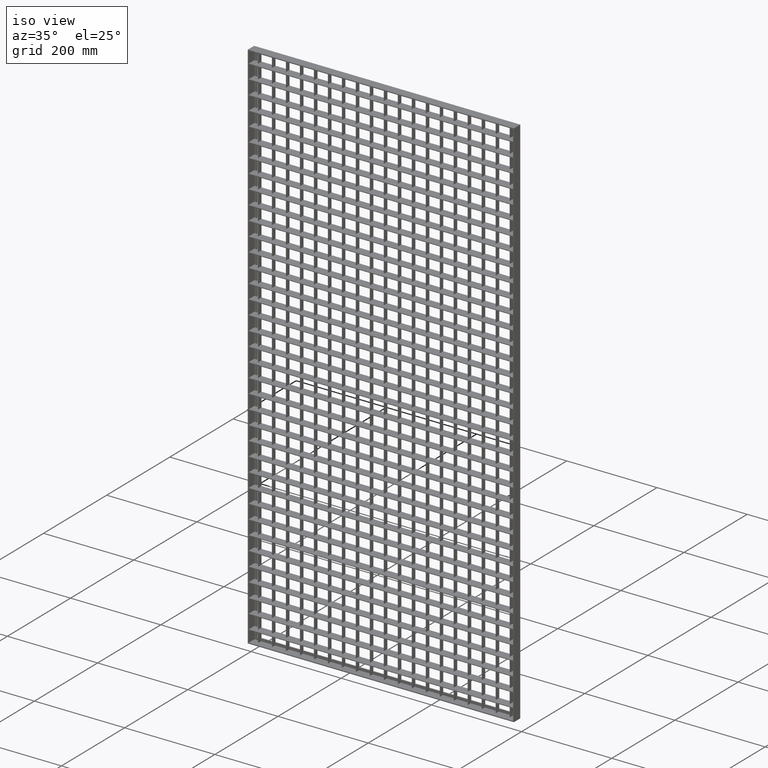
[diagram: clean part render]
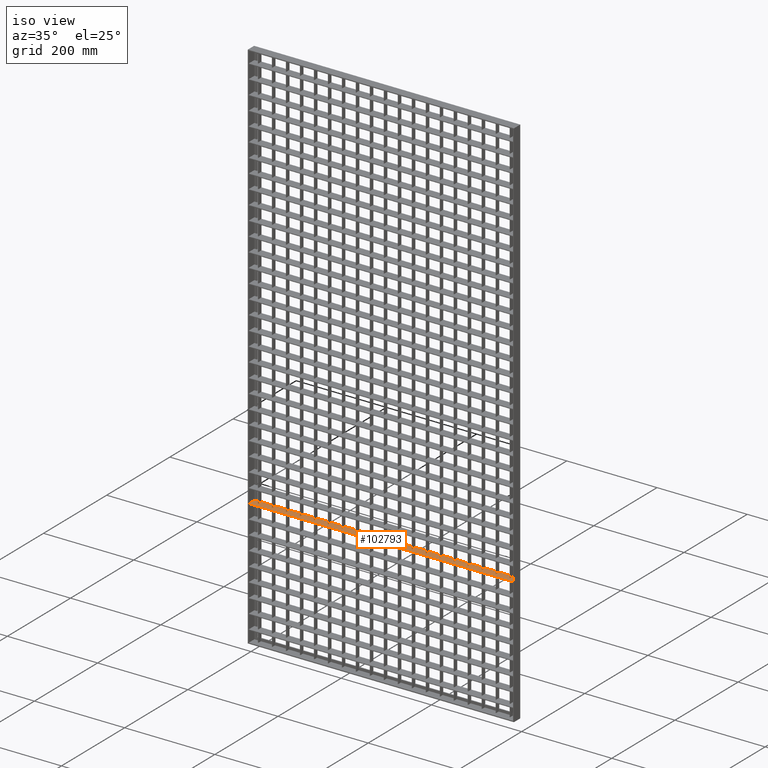
[diagram: same view with one face highlighted and labeled with its STEP entity id]
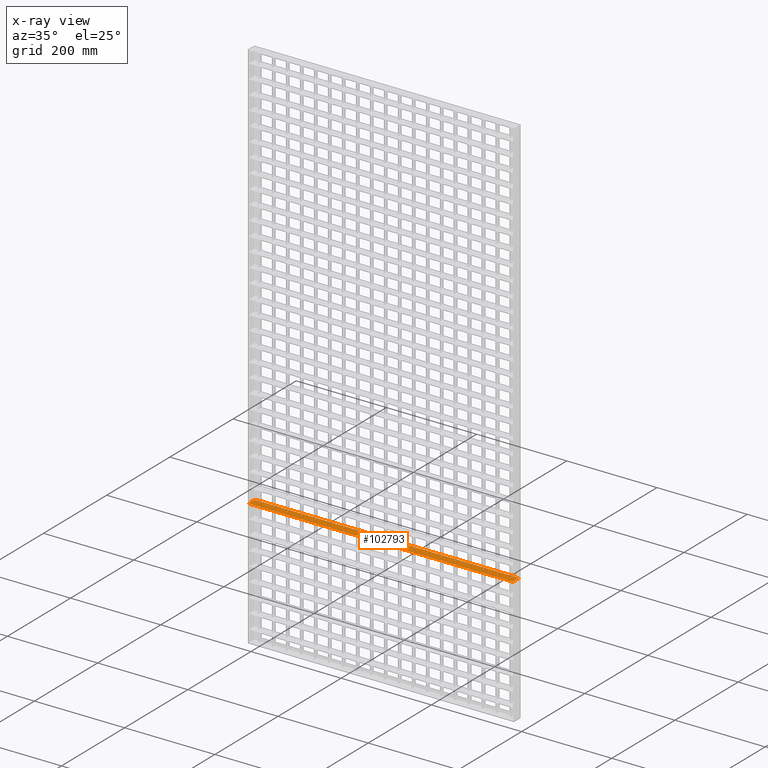
[diagram: x-ray of the same camera — body ghosted, the highlighted face saturated]
A machine part, iso view. The second image highlights one B-rep face of the part: STEP entity #102793.
The next image is the same camera in x-ray: the body ghosted, the highlighted face saturated — about 0% of this face is hidden behind the body in this view.
In plain terms, the highlighted planar face has unit normal (0, 0, -1).
Its self-contained STEP definition (entity closure, byte-faithful):
#78 = CARTESIAN_POINT ( 'NONE',  ( 170.4999999999999400, 1.345490023831153400E-015, -909.2499999999996600 ) ) ;
#370 = CARTESIAN_POINT ( 'NONE',  ( 78.50000000000001400, 1.734723475976807100E-015, -909.2499999999996600 ) ) ;
#568 = LINE ( 'NONE', #62089, #49426 ) ;
#1215 = DIRECTION ( 'NONE',  ( 0.0000000000000000000, 1.000000000000000000, 0.0000000000000000000 ) ) ;
#1336 = VECTOR ( 'NONE', #60991, 1000.000000000000000 ) ;
#1438 = VERTEX_POINT ( 'NONE', #71769 ) ;
#1625 = VECTOR ( 'NONE', #14140, 1000.000000000000000 ) ;
#1772 = LINE ( 'NONE', #8859, #18064 ) ;
#1851 = DIRECTION ( 'NONE',  ( 0.0000000000000000000, 1.000000000000000000, 0.0000000000000000000 ) ) ;
#1933 = LINE ( 'NONE', #41455, #72022 ) ;
#2277 = CARTESIAN_POINT ( 'NONE',  ( 295.5000000000000000, 10.00000000000008700, -909.2499999999996600 ) ) ;
#2366 = LINE ( 'NONE', #75761, #37498 ) ;
#2458 = DIRECTION ( 'NONE',  ( 0.0000000000000000000, -1.000000000000000000, 0.0000000000000000000 ) ) ;
#2610 = DIRECTION ( 'NONE',  ( -1.000000000000000000, -3.061616997868382600E-016, 0.0000000000000000000 ) ) ;
#2643 = EDGE_CURVE ( 'NONE', #42727, #15884, #7554, .T. ) ;
#2655 = ORIENTED_EDGE ( 'NONE', *, *, #2643, .T. ) ;
#2657 = LINE ( 'NONE', #76883, #100457 ) ;
#2884 = ORIENTED_EDGE ( 'NONE', *, *, #66905, .T. ) ;
#2938 = LINE ( 'NONE', #61050, #1625 ) ;
#3167 = EDGE_CURVE ( 'NONE', #20402, #7602, #48887, .T. ) ;
#3427 = EDGE_CURVE ( 'NONE', #86903, #40808, #18760, .T. ) ;
#3439 = VECTOR ( 'NONE', #88940, 1000.000000000000000 ) ;
#3487 = LINE ( 'NONE', #13664, #46133 ) ;
#4310 = CARTESIAN_POINT ( 'NONE',  ( 295.5000000000000000, 1.734723475976807100E-015, -909.2499999999996600 ) ) ;
#4484 = CARTESIAN_POINT ( 'NONE',  ( 7.999999999999996400, 8.000000000000001800, -909.2499999999996600 ) ) ;
#5351 = EDGE_CURVE ( 'NONE', #18901, #21180, #16200, .T. ) ;
#5453 = EDGE_CURVE ( 'NONE', #32076, #76232, #53677, .T. ) ;
#5468 = VERTEX_POINT ( 'NONE', #11024 ) ;
#5621 = ORIENTED_EDGE ( 'NONE', *, *, #15401, .F. ) ;
#5641 = CARTESIAN_POINT ( 'NONE',  ( 8.000000000000007100, 9.999999999999998200, -909.2499999999996600 ) ) ;
#5645 = EDGE_CURVE ( 'NONE', #101463, #81295, #2366, .T. ) ;
#5888 = CARTESIAN_POINT ( 'NONE',  ( 608.0561711201316900, 9.714451465470119700E-014, -909.2499999999996600 ) ) ;
#5923 = CARTESIAN_POINT ( 'NONE',  ( 202.5000000000000000, 1.734723475976807100E-015, -909.2499999999996600 ) ) ;
#6201 = DIRECTION ( 'NONE',  ( 1.000000000000000000, 0.0000000000000000000, 0.0000000000000000000 ) ) ;
#6344 = EDGE_CURVE ( 'NONE', #81295, #49797, #91287, .T. ) ;
#6555 = EDGE_CURVE ( 'NONE', #102864, #52254, #76183, .T. ) ;
#6805 = DIRECTION ( 'NONE',  ( 0.0000000000000000000, -1.000000000000000000, 0.0000000000000000000 ) ) ;
#6844 = ORIENTED_EDGE ( 'NONE', *, *, #100784, .T. ) ;
#7112 = EDGE_CURVE ( 'NONE', #91309, #96968, #51003, .T. ) ;
#7199 = CARTESIAN_POINT ( 'NONE',  ( 608.0561711201316900, -2.775557561562891400E-014, -909.2499999999996600 ) ) ;
#7554 = LINE ( 'NONE', #46752, #37796 ) ;
#7592 = VERTEX_POINT ( 'NONE', #62541 ) ;
#7602 = VERTEX_POINT ( 'NONE', #69889 ) ;
#7664 = CARTESIAN_POINT ( 'NONE',  ( 295.5000000000000000, -9.999999999999818800, -909.2499999999996600 ) ) ;
#7706 = EDGE_CURVE ( 'NONE', #82627, #26991, #73302, .T. ) ;
#8111 = DIRECTION ( 'NONE',  ( -1.000000000000000000, -3.061616997868373300E-016, 0.0000000000000000000 ) ) ;
#8253 = DIRECTION ( 'NONE',  ( 0.0000000000000000000, -1.000000000000000000, 0.0000000000000000000 ) ) ;
#8366 = ORIENTED_EDGE ( 'NONE', *, *, #3427, .F. ) ;
#8679 = CARTESIAN_POINT ( 'NONE',  ( 450.5000000000001100, 10.00000000000013300, -909.2499999999996600 ) ) ;
#8697 = ORIENTED_EDGE ( 'NONE', *, *, #39094, .T. ) ;
#8776 = CARTESIAN_POINT ( 'NONE',  ( 608.0561711201316900, 10.00000000000018300, -909.2499999999996600 ) ) ;
#8859 = CARTESIAN_POINT ( 'NONE',  ( 608.0561711201316900, 10.00000000000018300, -909.2499999999996600 ) ) ;
#9248 = ORIENTED_EDGE ( 'NONE', *, *, #70569, .T. ) ;
#9388 = ORIENTED_EDGE ( 'NONE', *, *, #56530, .F. ) ;
#9433 = DIRECTION ( 'NONE',  ( 0.0000000000000000000, -1.000000000000000000, 0.0000000000000000000 ) ) ;
#9509 = ORIENTED_EDGE ( 'NONE', *, *, #26247, .F. ) ;
#9542 = VERTEX_POINT ( 'NONE', #21664 ) ;
#9615 = VERTEX_POINT ( 'NONE', #39545 ) ;
#9704 = LINE ( 'NONE', #46337, #62217 ) ;
#9806 = VECTOR ( 'NONE', #8253, 1000.000000000000000 ) ;
#9964 = CARTESIAN_POINT ( 'NONE',  ( 108.4999999999999900, -9.999999999999818800, -909.2499999999996600 ) ) ;
#10398 = ORIENTED_EDGE ( 'NONE', *, *, #84453, .T. ) ;
#10436 = CARTESIAN_POINT ( 'NONE',  ( 171.5000000000000300, 10.00000000000004800, -909.2499999999996600 ) ) ;
#10454 = ORIENTED_EDGE ( 'NONE', *, *, #32144, .T. ) ;
#10692 = CARTESIAN_POINT ( 'NONE',  ( 608.0561711201316900, 10.00000000000018300, -909.2499999999996600 ) ) ;
#10978 = EDGE_CURVE ( 'NONE', #66422, #102581, #84723, .T. ) ;
#11024 = CARTESIAN_POINT ( 'NONE',  ( 171.5000000000000000, 1.734723475976807100E-015, -909.2499999999996600 ) ) ;
#11152 = CARTESIAN_POINT ( 'NONE',  ( 608.0561711201316900, 10.00000000000018300, -909.2499999999996600 ) ) ;
#11207 = CARTESIAN_POINT ( 'NONE',  ( 388.5000000000000600, 10.00000000000011500, -909.2499999999996600 ) ) ;
#11286 = VECTOR ( 'NONE', #82263, 1000.000000000000000 ) ;
#11447 = VECTOR ( 'NONE', #95395, 1000.000000000000000 ) ;
#11859 = EDGE_CURVE ( 'NONE', #66422, #53728, #47039, .T. ) ;
#12289 = LINE ( 'NONE', #11152, #93790 ) ;
#12938 = ORIENTED_EDGE ( 'NONE', *, *, #77620, .T. ) ;
#13148 = VERTEX_POINT ( 'NONE', #10436 ) ;
#13159 = VECTOR ( 'NONE', #38694, 1000.000000000000000 ) ;
#13304 = EDGE_CURVE ( 'NONE', #57075, #93430, #2657, .T. ) ;
#13560 = ORIENTED_EDGE ( 'NONE', *, *, #83754, .F. ) ;
#13664 = CARTESIAN_POINT ( 'NONE',  ( 608.0561711201316900, 10.00000000000018300, -909.2499999999996600 ) ) ;
#13735 = CARTESIAN_POINT ( 'NONE',  ( 108.4999999999999900, 10.00000000000000200, -909.2499999999996600 ) ) ;
#13865 = VECTOR ( 'NONE', #25073, 1000.000000000000000 ) ;
#13880 = CARTESIAN_POINT ( 'NONE',  ( 387.5000000000000000, 1.718540578710342600E-015, -909.2499999999996600 ) ) ;
#13884 = VERTEX_POINT ( 'NONE', #53355 ) ;
#13956 = VECTOR ( 'NONE', #67084, 1000.000000000000000 ) ;
#14019 = DIRECTION ( 'NONE',  ( 1.000000000000000000, 0.0000000000000000000, 0.0000000000000000000 ) ) ;
#14140 = DIRECTION ( 'NONE',  ( 1.000000000000000000, -3.061616997868373300E-016, 0.0000000000000000000 ) ) ;
#14207 = ORIENTED_EDGE ( 'NONE', *, *, #95027, .T. ) ;
#14262 = VECTOR ( 'NONE', #6201, 1000.000000000000000 ) ;
#14368 = CARTESIAN_POINT ( 'NONE',  ( 511.5000000000000600, -9.999999999999818800, -909.2499999999996600 ) ) ;
#14772 = ORIENTED_EDGE ( 'NONE', *, *, #96284, .T. ) ;
#14792 = LINE ( 'NONE', #88891, #38705 ) ;
#15186 = CARTESIAN_POINT ( 'NONE',  ( 232.4999999999999700, -9.999999999999818800, -909.2499999999996600 ) ) ;
#15219 = CARTESIAN_POINT ( 'NONE',  ( 264.4999999999999400, 10.00000000000007600, -909.2499999999996600 ) ) ;
#15255 = VECTOR ( 'NONE', #87243, 1000.000000000000000 ) ;
#15350 = VERTEX_POINT ( 'NONE', #88763 ) ;
#15401 = EDGE_CURVE ( 'NONE', #9542, #18901, #100084, .T. ) ;
#15416 = ORIENTED_EDGE ( 'NONE', *, *, #52097, .T. ) ;
#15467 = EDGE_CURVE ( 'NONE', #56647, #73288, #87455, .T. ) ;
#15729 = VECTOR ( 'NONE', #31173, 1000.000000000000000 ) ;
#15865 = VERTEX_POINT ( 'NONE', #98022 ) ;
#15884 = VERTEX_POINT ( 'NONE', #8679 ) ;
#15939 = CARTESIAN_POINT ( 'NONE',  ( 356.5000000000001700, 10.00000000000010700, -909.2499999999996600 ) ) ;
#16144 = EDGE_CURVE ( 'NONE', #22134, #82326, #9704, .T. ) ;
#16200 = LINE ( 'NONE', #80372, #82592 ) ;
#16316 = LINE ( 'NONE', #91999, #53879 ) ;
#16484 = ORIENTED_EDGE ( 'NONE', *, *, #42547, .T. ) ;
#16559 = CARTESIAN_POINT ( 'NONE',  ( 264.4999999999999400, -9.999999999999818800, -909.2499999999996600 ) ) ;
#16635 = EDGE_CURVE ( 'NONE', #102505, #93416, #95890, .T. ) ;
#16653 = VECTOR ( 'NONE', #39118, 1000.000000000000000 ) ;
#16824 = CARTESIAN_POINT ( 'NONE',  ( 574.5000000000001100, 10.00000000000017200, -909.2499999999996600 ) ) ;
#17376 = EDGE_CURVE ( 'NONE', #66761, #17636, #95675, .T. ) ;
#17466 = LINE ( 'NONE', #98584, #100208 ) ;
#17592 = VECTOR ( 'NONE', #75339, 1000.000000000000000 ) ;
#17636 = VERTEX_POINT ( 'NONE', #47863 ) ;
#17676 = EDGE_CURVE ( 'NONE', #96968, #91911, #71696, .T. ) ;
#18064 = VECTOR ( 'NONE', #96448, 1000.000000000000000 ) ;
#18068 = VERTEX_POINT ( 'NONE', #71823 ) ;
#18076 = EDGE_CURVE ( 'NONE', #9542, #102864, #31660, .T. ) ;
#18182 = LINE ( 'NONE', #22176, #93339 ) ;
#18328 = EDGE_CURVE ( 'NONE', #13884, #52605, #64070, .T. ) ;
#18370 = CARTESIAN_POINT ( 'NONE',  ( 574.5000000000001100, -9.999999999999818800, -909.2499999999996600 ) ) ;
#18398 = ORIENTED_EDGE ( 'NONE', *, *, #24230, .T. ) ;
#18568 = EDGE_CURVE ( 'NONE', #66128, #22930, #27742, .T. ) ;
#18697 = VECTOR ( 'NONE', #62219, 1000.000000000000000 ) ;
#18760 = LINE ( 'NONE', #14368, #37594 ) ;
#18901 = VERTEX_POINT ( 'NONE', #56642 ) ;
#19048 = EDGE_CURVE ( 'NONE', #95691, #64684, #31573, .T. ) ;
#19248 = ORIENTED_EDGE ( 'NONE', *, *, #10978, .F. ) ;
#19317 = LINE ( 'NONE', #24418, #34438 ) ;
#19402 = DIRECTION ( 'NONE',  ( -1.000000000000000000, -3.061616997868373300E-016, 0.0000000000000000000 ) ) ;
#19624 = CARTESIAN_POINT ( 'NONE',  ( 232.4999999999999700, 10.00000000000000200, -909.2499999999996600 ) ) ;
#19668 = CARTESIAN_POINT ( 'NONE',  ( 543.5000000000001100, -9.999999999999818800, -909.2499999999996600 ) ) ;
#19739 = VECTOR ( 'NONE', #74885, 1000.000000000000000 ) ;
#20206 = ORIENTED_EDGE ( 'NONE', *, *, #46260, .F. ) ;
#20232 = CARTESIAN_POINT ( 'NONE',  ( 170.4999999999999700, 10.00000000000000200, -909.2499999999996600 ) ) ;
#20394 = DIRECTION ( 'NONE',  ( 0.0000000000000000000, 1.000000000000000000, 0.0000000000000000000 ) ) ;
#20402 = VERTEX_POINT ( 'NONE', #83369 ) ;
#20476 = DIRECTION ( 'NONE',  ( 0.0000000000000000000, -1.000000000000000000, 0.0000000000000000000 ) ) ;
#20480 = CARTESIAN_POINT ( 'NONE',  ( 449.5000000000000600, -9.999999999999818800, -909.2499999999996600 ) ) ;
#20490 = EDGE_CURVE ( 'NONE', #52605, #13148, #3487, .T. ) ;
#20755 = ORIENTED_EDGE ( 'NONE', *, *, #3167, .F. ) ;
#20804 = EDGE_CURVE ( 'NONE', #18068, #9615, #27316, .T. ) ;
#20813 = LINE ( 'NONE', #65398, #72085 ) ;
#20881 = ORIENTED_EDGE ( 'NONE', *, *, #38727, .F. ) ;
#20886 = ORIENTED_EDGE ( 'NONE', *, *, #101408, .T. ) ;
#20919 = VECTOR ( 'NONE', #27188, 1000.000000000000000 ) ;
#21180 = VERTEX_POINT ( 'NONE', #87432 ) ;
#21664 = CARTESIAN_POINT ( 'NONE',  ( 325.5000000000000600, 10.00000000000009600, -909.2499999999996600 ) ) ;
#22134 = VERTEX_POINT ( 'NONE', #54232 ) ;
#22176 = CARTESIAN_POINT ( 'NONE',  ( 170.4999999999999700, -9.999999999999818800, -909.2499999999996600 ) ) ;
#22335 = CARTESIAN_POINT ( 'NONE',  ( 542.5000000000001100, 1.718540578710342600E-015, -909.2499999999996600 ) ) ;
#22501 = LINE ( 'NONE', #41233, #36295 ) ;
#22595 = CARTESIAN_POINT ( 'NONE',  ( 608.0561711201316900, -6.591949208711867000E-014, -909.2499999999996600 ) ) ;
#22603 = DIRECTION ( 'NONE',  ( 0.0000000000000000000, 1.000000000000000000, 0.0000000000000000000 ) ) ;
#22659 = LINE ( 'NONE', #22595, #46457 ) ;
#22918 = CARTESIAN_POINT ( 'NONE',  ( 608.0561711201316900, 10.00000000000018300, -909.2499999999996600 ) ) ;
#22930 = VERTEX_POINT ( 'NONE', #41800 ) ;
#23277 = LINE ( 'NONE', #38010, #13159 ) ;
#23529 = DIRECTION ( 'NONE',  ( 1.000000000000000000, -3.061616997868373300E-016, 0.0000000000000000000 ) ) ;
#23619 = VERTEX_POINT ( 'NONE', #91268 ) ;
#23630 = VECTOR ( 'NONE', #24899, 1000.000000000000000 ) ;
#23717 = LINE ( 'NONE', #4484, #44996 ) ;
#24183 = VECTOR ( 'NONE', #42612, 1000.000000000000000 ) ;
#24212 = CARTESIAN_POINT ( 'NONE',  ( 233.4999999999999700, 10.00000000000006800, -909.2499999999996600 ) ) ;
#24230 = EDGE_CURVE ( 'NONE', #103788, #13884, #90890, .T. ) ;
#24368 = CARTESIAN_POINT ( 'NONE',  ( 608.0561711201316900, 10.00000000000018300, -909.2499999999996600 ) ) ;
#24393 = EDGE_CURVE ( 'NONE', #71296, #53728, #23277, .T. ) ;
#24418 = CARTESIAN_POINT ( 'NONE',  ( 608.0561711201316900, 10.00000000000018300, -909.2499999999996600 ) ) ;
#24470 = VECTOR ( 'NONE', #42818, 1000.000000000000000 ) ;
#24515 = VERTEX_POINT ( 'NONE', #40443 ) ;
#24666 = EDGE_CURVE ( 'NONE', #48563, #95691, #1933, .T. ) ;
#24676 = VERTEX_POINT ( 'NONE', #57095 ) ;
#24899 = DIRECTION ( 'NONE',  ( 0.0000000000000000000, -1.000000000000000000, 0.0000000000000000000 ) ) ;
#24976 = CARTESIAN_POINT ( 'NONE',  ( 201.4999999999999700, 10.00000000000000200, -909.2499999999996600 ) ) ;
#25073 = DIRECTION ( 'NONE',  ( -1.000000000000000000, -3.061616997868382600E-016, 0.0000000000000000000 ) ) ;
#25173 = ORIENTED_EDGE ( 'NONE', *, *, #35881, .T. ) ;
#25205 = CARTESIAN_POINT ( 'NONE',  ( 480.5000000000000000, -9.999999999999818800, -909.2499999999996600 ) ) ;
#25214 = ORIENTED_EDGE ( 'NONE', *, *, #36207, .T. ) ;
#25222 = VECTOR ( 'NONE', #83190, 1000.000000000000000 ) ;
#25417 = DIRECTION ( 'NONE',  ( -1.000000000000000000, -3.061616997868382600E-016, 0.0000000000000000000 ) ) ;
#25592 = VECTOR ( 'NONE', #83769, 1000.000000000000000 ) ;
#25692 = CARTESIAN_POINT ( 'NONE',  ( 512.5000000000001100, 1.500064159632462200E-015, -909.2499999999996600 ) ) ;
#25722 = ORIENTED_EDGE ( 'NONE', *, *, #17676, .T. ) ;
#25809 = CARTESIAN_POINT ( 'NONE',  ( 449.5000000000000600, 1.718540578710342600E-015, -909.2499999999996600 ) ) ;
#25833 = VERTEX_POINT ( 'NONE', #79046 ) ;
#26067 = CARTESIAN_POINT ( 'NONE',  ( 140.4999999999999700, 1.734723475976807100E-015, -909.2499999999996600 ) ) ;
#26247 = EDGE_CURVE ( 'NONE', #102877, #63757, #50280, .T. ) ;
#26666 = VECTOR ( 'NONE', #36737, 1000.000000000000000 ) ;
#26779 = EDGE_CURVE ( 'NONE', #17636, #57075, #36473, .T. ) ;
#26863 = CARTESIAN_POINT ( 'NONE',  ( 608.0561711201316900, 1.734723475976807100E-013, -909.2499999999996600 ) ) ;
#26991 = VERTEX_POINT ( 'NONE', #37958 ) ;
#27091 = VECTOR ( 'NONE', #19402, 1000.000000000000000 ) ;
#27158 = CARTESIAN_POINT ( 'NONE',  ( 608.0561711201316900, -7.459310946700270500E-014, -909.2499999999996600 ) ) ;
#27188 = DIRECTION ( 'NONE',  ( 0.0000000000000000000, -1.000000000000000000, 0.0000000000000000000 ) ) ;
#27316 = LINE ( 'NONE', #41781, #98723 ) ;
#27500 = VECTOR ( 'NONE', #28919, 1000.000000000000000 ) ;
#27742 = LINE ( 'NONE', #19668, #85269 ) ;
#27979 = CARTESIAN_POINT ( 'NONE',  ( 511.5000000000000600, 10.00000000000015300, -909.2499999999996600 ) ) ;
#28204 = LINE ( 'NONE', #70481, #33202 ) ;
#28238 = VERTEX_POINT ( 'NONE', #40098 ) ;
#28503 = VECTOR ( 'NONE', #57540, 1000.000000000000000 ) ;
#28916 = VECTOR ( 'NONE', #25417, 1000.000000000000000 ) ;
#28919 = DIRECTION ( 'NONE',  ( 0.0000000000000000000, -1.000000000000000000, 0.0000000000000000000 ) ) ;
#29119 = VERTEX_POINT ( 'NONE', #30811 ) ;
#29638 = DIRECTION ( 'NONE',  ( 0.0000000000000000000, 1.000000000000000000, 0.0000000000000000000 ) ) ;
#29795 = VECTOR ( 'NONE', #59974, 1000.000000000000000 ) ;
#30258 = CARTESIAN_POINT ( 'NONE',  ( 263.4999999999999400, -9.999999999999818800, -909.2499999999996600 ) ) ;
#30259 = VERTEX_POINT ( 'NONE', #13880 ) ;
#30639 = LINE ( 'NONE', #50586, #31848 ) ;
#30762 = CARTESIAN_POINT ( 'NONE',  ( 357.5000000000001700, 10.00000000000010700, -909.2499999999996600 ) ) ;
#30811 = CARTESIAN_POINT ( 'NONE',  ( 419.5000000000001100, 2.217526624179423100E-015, -909.2499999999996600 ) ) ;
#31142 = ORIENTED_EDGE ( 'NONE', *, *, #92760, .T. ) ;
#31173 = DIRECTION ( 'NONE',  ( 0.0000000000000000000, -1.000000000000000000, 0.0000000000000000000 ) ) ;
#31301 = VECTOR ( 'NONE', #29638, 1000.000000000000000 ) ;
#31406 = ORIENTED_EDGE ( 'NONE', *, *, #16144, .F. ) ;
#31573 = LINE ( 'NONE', #24368, #13865 ) ;
#31650 = VECTOR ( 'NONE', #76021, 1000.000000000000000 ) ;
#31660 = LINE ( 'NONE', #22918, #15255 ) ;
#31848 = VECTOR ( 'NONE', #51603, 1000.000000000000000 ) ;
#32051 = ORIENTED_EDGE ( 'NONE', *, *, #54333, .T. ) ;
#32075 = EDGE_CURVE ( 'NONE', #67802, #76657, #63473, .T. ) ;
#32076 = VERTEX_POINT ( 'NONE', #19624 ) ;
#32144 = EDGE_CURVE ( 'NONE', #57867, #28238, #103623, .T. ) ;
#32355 = VERTEX_POINT ( 'NONE', #79427 ) ;
#32626 = CARTESIAN_POINT ( 'NONE',  ( 511.5000000000000600, 1.718540578710342600E-015, -909.2499999999996600 ) ) ;
#32712 = ORIENTED_EDGE ( 'NONE', *, *, #18568, .F. ) ;
#33162 = LINE ( 'NONE', #69534, #14262 ) ;
#33202 = VECTOR ( 'NONE', #79255, 1000.000000000000000 ) ;
#33864 = ORIENTED_EDGE ( 'NONE', *, *, #51060, .T. ) ;
#34009 = ORIENTED_EDGE ( 'NONE', *, *, #62255, .T. ) ;
#34172 = ORIENTED_EDGE ( 'NONE', *, *, #70854, .T. ) ;
#34438 = VECTOR ( 'NONE', #49216, 1000.000000000000000 ) ;
#34497 = EDGE_CURVE ( 'NONE', #61123, #24515, #63847, .T. ) ;
#34499 = CARTESIAN_POINT ( 'NONE',  ( 543.5000000000001100, 6.826688461245314000E-016, -909.2499999999996600 ) ) ;
#34617 = VERTEX_POINT ( 'NONE', #50876 ) ;
#34765 = DIRECTION ( 'NONE',  ( -1.000000000000000000, -3.061616997868382600E-016, 0.0000000000000000000 ) ) ;
#35102 = CARTESIAN_POINT ( 'NONE',  ( 608.0561711201316900, 10.00000000000018300, -909.2499999999996600 ) ) ;
#35215 = AXIS2_PLACEMENT_3D ( 'NONE', #63893, #55144, #47174 ) ;
#35373 = ORIENTED_EDGE ( 'NONE', *, *, #76314, .T. ) ;
#35881 = EDGE_CURVE ( 'NONE', #64684, #88403, #92312, .T. ) ;
#35943 = DIRECTION ( 'NONE',  ( -1.000000000000000000, -3.061616997868382600E-016, 0.0000000000000000000 ) ) ;
#36020 = LINE ( 'NONE', #18370, #28503 ) ;
#36027 = ORIENTED_EDGE ( 'NONE', *, *, #13304, .F. ) ;
#36161 = VERTEX_POINT ( 'NONE', #47828 ) ;
#36207 = EDGE_CURVE ( 'NONE', #23619, #102505, #43456, .T. ) ;
#36295 = VECTOR ( 'NONE', #2610, 1000.000000000000000 ) ;
#36410 = CARTESIAN_POINT ( 'NONE',  ( 294.5000000000000000, 10.00000000000000200, -909.2499999999996600 ) ) ;
#36473 = LINE ( 'NONE', #27158, #17592 ) ;
#36579 = LINE ( 'NONE', #25205, #79071 ) ;
#36737 = DIRECTION ( 'NONE',  ( -1.000000000000000000, -3.061616997868382600E-016, 0.0000000000000000000 ) ) ;
#37315 = ORIENTED_EDGE ( 'NONE', *, *, #53798, .T. ) ;
#37498 = VECTOR ( 'NONE', #35943, 1000.000000000000000 ) ;
#37594 = VECTOR ( 'NONE', #70350, 1000.000000000000000 ) ;
#37796 = VECTOR ( 'NONE', #93665, 1000.000000000000000 ) ;
#37903 = LINE ( 'NONE', #43405, #26666 ) ;
#37958 = CARTESIAN_POINT ( 'NONE',  ( 233.4999999999999700, 1.734723475976807100E-015, -909.2499999999996600 ) ) ;
#38003 = CARTESIAN_POINT ( 'NONE',  ( 109.4999999999999900, -9.999999999999818800, -909.2499999999996600 ) ) ;
#38010 = CARTESIAN_POINT ( 'NONE',  ( 512.5000000000001100, -9.999999999999818800, -909.2499999999996600 ) ) ;
#38046 = LINE ( 'NONE', #15186, #16653 ) ;
#38599 = ORIENTED_EDGE ( 'NONE', *, *, #42115, .T. ) ;
#38687 = VERTEX_POINT ( 'NONE', #82458 ) ;
#38694 = DIRECTION ( 'NONE',  ( 0.0000000000000000000, 1.000000000000000000, 0.0000000000000000000 ) ) ;
#38705 = VECTOR ( 'NONE', #41052, 1000.000000000000000 ) ;
#38727 = EDGE_CURVE ( 'NONE', #84169, #30259, #67953, .T. ) ;
#38799 = ORIENTED_EDGE ( 'NONE', *, *, #49201, .F. ) ;
#38930 = CARTESIAN_POINT ( 'NONE',  ( 608.0561711201316900, 1.630640067418198700E-013, -909.2499999999996600 ) ) ;
#39094 = EDGE_CURVE ( 'NONE', #88403, #1438, #28204, .T. ) ;
#39100 = EDGE_CURVE ( 'NONE', #28238, #90589, #568, .T. ) ;
#39118 = DIRECTION ( 'NONE',  ( 0.0000000000000000000, 1.000000000000000000, 0.0000000000000000000 ) ) ;
#39169 = EDGE_CURVE ( 'NONE', #20402, #44233, #1772, .T. ) ;
#39342 = EDGE_CURVE ( 'NONE', #52011, #95044, #74393, .T. ) ;
#39545 = CARTESIAN_POINT ( 'NONE',  ( 418.5000000000000600, 1.718540578710342600E-015, -909.2499999999996600 ) ) ;
#40098 = CARTESIAN_POINT ( 'NONE',  ( 77.50000000000001400, 6.280275592842356500E-016, -909.2499999999996600 ) ) ;
#40247 = CARTESIAN_POINT ( 'NONE',  ( 47.49999999999998600, 10.00000000000001100, -909.2499999999996600 ) ) ;
#40415 = ORIENTED_EDGE ( 'NONE', *, *, #7706, .T. ) ;
#40443 = CARTESIAN_POINT ( 'NONE',  ( 78.50000000000001400, 10.00000000000002100, -909.2499999999996600 ) ) ;
#40519 = LINE ( 'NONE', #88903, #60447 ) ;
#40637 = VECTOR ( 'NONE', #84459, 1000.000000000000000 ) ;
#40712 = CARTESIAN_POINT ( 'NONE',  ( 608.0561711201316900, -5.551115123125782700E-014, -909.2499999999996600 ) ) ;
#40808 = VERTEX_POINT ( 'NONE', #32626 ) ;
#40924 = DIRECTION ( 'NONE',  ( -1.000000000000000000, -3.061616997868382600E-016, 0.0000000000000000000 ) ) ;
#41052 = DIRECTION ( 'NONE',  ( 0.0000000000000000000, -1.000000000000000000, 0.0000000000000000000 ) ) ;
#41233 = CARTESIAN_POINT ( 'NONE',  ( 608.0561711201316900, 10.00000000000018300, -909.2499999999996600 ) ) ;
#41338 = FACE_OUTER_BOUND ( 'NONE', #93844, .T. ) ;
#41441 = ORIENTED_EDGE ( 'NONE', *, *, #39100, .T. ) ;
#41455 = CARTESIAN_POINT ( 'NONE',  ( 46.49999999999998600, -9.999999999999818800, -909.2499999999996600 ) ) ;
#41593 = CARTESIAN_POINT ( 'NONE',  ( 608.0561711201316900, 10.00000000000018300, -909.2499999999996600 ) ) ;
#41781 = CARTESIAN_POINT ( 'NONE',  ( 418.5000000000000600, -9.999999999999818800, -909.2499999999996600 ) ) ;
#41800 = CARTESIAN_POINT ( 'NONE',  ( 543.5000000000001100, 10.00000000000016300, -909.2499999999996600 ) ) ;
#41951 = EDGE_CURVE ( 'NONE', #13148, #5468, #14792, .T. ) ;
#42115 = EDGE_CURVE ( 'NONE', #24676, #82627, #12289, .T. ) ;
#42476 = CARTESIAN_POINT ( 'NONE',  ( 608.0561711201316900, 10.00000000000018300, -909.2499999999996600 ) ) ;
#42547 = EDGE_CURVE ( 'NONE', #15865, #15350, #74775, .T. ) ;
#42612 = DIRECTION ( 'NONE',  ( 0.0000000000000000000, 1.000000000000000000, 0.0000000000000000000 ) ) ;
#42694 = CARTESIAN_POINT ( 'NONE',  ( 588.0000000000000000, -10.00000000000000400, -909.2499999999996600 ) ) ;
#42718 = ORIENTED_EDGE ( 'NONE', *, *, #73441, .F. ) ;
#42727 = VERTEX_POINT ( 'NONE', #51635 ) ;
#42818 = DIRECTION ( 'NONE',  ( -1.000000000000000000, -3.061616997868382600E-016, 0.0000000000000000000 ) ) ;
#42891 = VECTOR ( 'NONE', #56418, 1000.000000000000000 ) ;
#42938 = CARTESIAN_POINT ( 'NONE',  ( 202.5000000000000000, -9.999999999999818800, -909.2499999999996600 ) ) ;
#43265 = DIRECTION ( 'NONE',  ( 0.0000000000000000000, -1.000000000000000000, 0.0000000000000000000 ) ) ;
#43405 = CARTESIAN_POINT ( 'NONE',  ( 608.0561711201316900, 10.00000000000018300, -909.2499999999996600 ) ) ;
#43456 = LINE ( 'NONE', #64560, #83441 ) ;
#43530 = EDGE_CURVE ( 'NONE', #102581, #66128, #60894, .T. ) ;
#43715 = LINE ( 'NONE', #77461, #31301 ) ;
#43738 = LINE ( 'NONE', #5888, #18697 ) ;
#44067 = DIRECTION ( 'NONE',  ( -1.000000000000000000, -3.061616997868382600E-016, 0.0000000000000000000 ) ) ;
#44202 = CARTESIAN_POINT ( 'NONE',  ( 2.000000000000003600, -10.00000000000000000, -909.2499999999996600 ) ) ;
#44233 = VERTEX_POINT ( 'NONE', #16824 ) ;
#44570 = CARTESIAN_POINT ( 'NONE',  ( 2.000000000000003600, -10.00000000000000000, -909.2499999999996600 ) ) ;
#44582 = DIRECTION ( 'NONE',  ( 0.0000000000000000000, -1.000000000000000000, 0.0000000000000000000 ) ) ;
#44996 = VECTOR ( 'NONE', #45126, 1000.000000000000000 ) ;
#45039 = CARTESIAN_POINT ( 'NONE',  ( 608.0561711201316900, -3.816391647148975600E-014, -909.2499999999996600 ) ) ;
#45126 = DIRECTION ( 'NONE',  ( 0.0000000000000000000, 1.000000000000000000, 0.0000000000000000000 ) ) ;
#45420 = ORIENTED_EDGE ( 'NONE', *, *, #20804, .F. ) ;
#45426 = CARTESIAN_POINT ( 'NONE',  ( 16.49999999999995700, 1.734723475976807100E-015, -909.2499999999996600 ) ) ;
#46067 = LINE ( 'NONE', #8776, #3439 ) ;
#46133 = VECTOR ( 'NONE', #93873, 1000.000000000000000 ) ;
#46209 = LINE ( 'NONE', #68684, #27500 ) ;
#46260 = EDGE_CURVE ( 'NONE', #95974, #73288, #23717, .T. ) ;
#46334 = ORIENTED_EDGE ( 'NONE', *, *, #92403, .F. ) ;
#46337 = CARTESIAN_POINT ( 'NONE',  ( 573.5000000000001100, -9.999999999999818800, -909.2499999999996600 ) ) ;
#46457 = VECTOR ( 'NONE', #79931, 1000.000000000000000 ) ;
#46668 = DIRECTION ( 'NONE',  ( 0.0000000000000000000, 1.000000000000000000, 0.0000000000000000000 ) ) ;
#46752 = CARTESIAN_POINT ( 'NONE',  ( 608.0561711201316900, 10.00000000000018300, -909.2499999999996600 ) ) ;
#46757 = VERTEX_POINT ( 'NONE', #51282 ) ;
#47039 = LINE ( 'NONE', #35102, #24470 ) ;
#47174 = DIRECTION ( 'NONE',  ( -1.000000000000000000, 0.0000000000000000000, -0.0000000000000000000 ) ) ;
#47828 = CARTESIAN_POINT ( 'NONE',  ( 481.5000000000000600, 10.00000000000014400, -909.2499999999996600 ) ) ;
#47863 = CARTESIAN_POINT ( 'NONE',  ( 356.5000000000001100, 1.718540578710342600E-015, -909.2499999999996600 ) ) ;
#47912 = ORIENTED_EDGE ( 'NONE', *, *, #7112, .T. ) ;
#48121 = VECTOR ( 'NONE', #82338, 1000.000000000000000 ) ;
#48419 = CARTESIAN_POINT ( 'NONE',  ( 201.5000000000000000, -9.999999999999818800, -909.2499999999996600 ) ) ;
#48563 = VERTEX_POINT ( 'NONE', #60527 ) ;
#48887 = LINE ( 'NONE', #84052, #88929 ) ;
#49201 = EDGE_CURVE ( 'NONE', #29119, #15350, #89097, .T. ) ;
#49216 = DIRECTION ( 'NONE',  ( -1.000000000000000000, -3.061616997868382600E-016, 0.0000000000000000000 ) ) ;
#49426 = VECTOR ( 'NONE', #22603, 1000.000000000000000 ) ;
#49498 = EDGE_CURVE ( 'NONE', #1438, #56647, #79037, .T. ) ;
#49797 = VERTEX_POINT ( 'NONE', #84170 ) ;
#49839 = VECTOR ( 'NONE', #70132, 1000.000000000000000 ) ;
#50114 = CARTESIAN_POINT ( 'NONE',  ( 608.0561711201316900, 10.00000000000018300, -909.2499999999996600 ) ) ;
#50280 = LINE ( 'NONE', #92629, #13956 ) ;
#50346 = VERTEX_POINT ( 'NONE', #82331 ) ;
#50486 = LINE ( 'NONE', #90087, #60451 ) ;
#50559 = VECTOR ( 'NONE', #95479, 1000.000000000000000 ) ;
#50586 = CARTESIAN_POINT ( 'NONE',  ( 326.5000000000000600, -9.999999999999818800, -909.2499999999996600 ) ) ;
#50876 = CARTESIAN_POINT ( 'NONE',  ( 481.5000000000000600, 5.827359971636044800E-016, -909.2499999999996600 ) ) ;
#51001 = CARTESIAN_POINT ( 'NONE',  ( 608.0561711201316900, 10.00000000000018300, -909.2499999999996600 ) ) ;
#51003 = LINE ( 'NONE', #59636, #29795 ) ;
#51060 = EDGE_CURVE ( 'NONE', #52254, #23619, #43738, .T. ) ;
#51282 = CARTESIAN_POINT ( 'NONE',  ( 47.49999999999998600, 1.734723475976807100E-015, -909.2499999999996600 ) ) ;
#51516 = CARTESIAN_POINT ( 'NONE',  ( 573.5000000000001100, 1.718540578710342600E-015, -909.2499999999996600 ) ) ;
#51550 = CARTESIAN_POINT ( 'NONE',  ( 108.4999999999999900, 1.445422872792135700E-015, -909.2499999999996600 ) ) ;
#51603 = DIRECTION ( 'NONE',  ( 0.0000000000000000000, 1.000000000000000000, 0.0000000000000000000 ) ) ;
#51635 = CARTESIAN_POINT ( 'NONE',  ( 480.5000000000000600, 10.00000000000014200, -909.2499999999996600 ) ) ;
#51648 = EDGE_CURVE ( 'NONE', #82766, #34617, #82328, .T. ) ;
#51877 = VECTOR ( 'NONE', #63189, 1000.000000000000000 ) ;
#52011 = VERTEX_POINT ( 'NONE', #25809 ) ;
#52097 = EDGE_CURVE ( 'NONE', #76232, #103788, #83528, .T. ) ;
#52106 = EDGE_CURVE ( 'NONE', #38687, #44233, #36020, .T. ) ;
#52170 = DIRECTION ( 'NONE',  ( 0.0000000000000000000, 1.000000000000000000, 0.0000000000000000000 ) ) ;
#52220 = VECTOR ( 'NONE', #100398, 1000.000000000000000 ) ;
#52254 = VERTEX_POINT ( 'NONE', #4310 ) ;
#52605 = VERTEX_POINT ( 'NONE', #24976 ) ;
#52672 = LINE ( 'NONE', #9964, #70208 ) ;
#52740 = EDGE_CURVE ( 'NONE', #66761, #93862, #99057, .T. ) ;
#52865 = VECTOR ( 'NONE', #14019, 1000.000000000000000 ) ;
#52916 = CARTESIAN_POINT ( 'NONE',  ( 357.5000000000001700, 2.117593775218441000E-015, -909.2499999999996600 ) ) ;
#53263 = DIRECTION ( 'NONE',  ( -1.000000000000000000, -3.061616997868373300E-016, 0.0000000000000000000 ) ) ;
#53355 = CARTESIAN_POINT ( 'NONE',  ( 201.4999999999999400, 2.162885337339102700E-015, -909.2499999999996600 ) ) ;
#53427 = EDGE_CURVE ( 'NONE', #90589, #75949, #16316, .T. ) ;
#53677 = LINE ( 'NONE', #10692, #76265 ) ;
#53728 = VERTEX_POINT ( 'NONE', #66654 ) ;
#53778 = CARTESIAN_POINT ( 'NONE',  ( 588.0000000000000000, -9.999999999999818800, -909.2499999999996600 ) ) ;
#53798 = EDGE_CURVE ( 'NONE', #18068, #63757, #22501, .T. ) ;
#53879 = VECTOR ( 'NONE', #44067, 1000.000000000000000 ) ;
#54097 = EDGE_CURVE ( 'NONE', #25833, #67802, #97561, .T. ) ;
#54232 = CARTESIAN_POINT ( 'NONE',  ( 573.5000000000001100, 10.00000000000017200, -909.2499999999996600 ) ) ;
#54333 = EDGE_CURVE ( 'NONE', #5468, #62316, #93709, .T. ) ;
#55144 = DIRECTION ( 'NONE',  ( 0.0000000000000000000, 0.0000000000000000000, -1.000000000000000000 ) ) ;
#56049 = CARTESIAN_POINT ( 'NONE',  ( 608.0561711201316900, 1.353084311261909500E-013, -909.2499999999996600 ) ) ;
#56140 = CARTESIAN_POINT ( 'NONE',  ( 608.0561711201316900, -1.908195823574487800E-014, -909.2499999999996600 ) ) ;
#56362 = LINE ( 'NONE', #30258, #75142 ) ;
#56418 = DIRECTION ( 'NONE',  ( 0.0000000000000000000, 1.000000000000000000, 0.0000000000000000000 ) ) ;
#56505 = DIRECTION ( 'NONE',  ( 1.000000000000000000, -3.061616997868373300E-016, 0.0000000000000000000 ) ) ;
#56530 = EDGE_CURVE ( 'NONE', #82326, #38687, #2938, .T. ) ;
#56642 = CARTESIAN_POINT ( 'NONE',  ( 325.5000000000000600, 1.718540578710342600E-015, -909.2499999999996600 ) ) ;
#56647 = VERTEX_POINT ( 'NONE', #70123 ) ;
#56694 = ORIENTED_EDGE ( 'NONE', *, *, #15467, .T. ) ;
#56753 = ORIENTED_EDGE ( 'NONE', *, *, #54097, .T. ) ;
#56767 = ORIENTED_EDGE ( 'NONE', *, *, #39169, .T. ) ;
#56848 = EDGE_CURVE ( 'NONE', #95044, #15884, #50486, .T. ) ;
#57075 = VERTEX_POINT ( 'NONE', #52916 ) ;
#57095 = CARTESIAN_POINT ( 'NONE',  ( 263.4999999999999400, 10.00000000000000200, -909.2499999999996600 ) ) ;
#57167 = EDGE_CURVE ( 'NONE', #7602, #64034, #74162, .T. ) ;
#57354 = ORIENTED_EDGE ( 'NONE', *, *, #18328, .T. ) ;
#57432 = LINE ( 'NONE', #68636, #97600 ) ;
#57540 = DIRECTION ( 'NONE',  ( 0.0000000000000000000, 1.000000000000000000, 0.0000000000000000000 ) ) ;
#57576 = DIRECTION ( 'NONE',  ( -1.000000000000000000, -3.061616997868382600E-016, 0.0000000000000000000 ) ) ;
#57579 = ORIENTED_EDGE ( 'NONE', *, *, #67121, .F. ) ;
#57867 = VERTEX_POINT ( 'NONE', #370 ) ;
#57891 = VERTEX_POINT ( 'NONE', #64074 ) ;
#57944 = CARTESIAN_POINT ( 'NONE',  ( 608.0561711201316900, 10.00000000000018300, -909.2499999999996600 ) ) ;
#58537 = CARTESIAN_POINT ( 'NONE',  ( 608.0561711201316900, -4.683753385137379200E-014, -909.2499999999996600 ) ) ;
#58650 = DIRECTION ( 'NONE',  ( 0.0000000000000000000, -1.000000000000000000, 0.0000000000000000000 ) ) ;
#58953 = CARTESIAN_POINT ( 'NONE',  ( 139.4999999999999400, -9.999999999999818800, -909.2499999999996600 ) ) ;
#59034 = ORIENTED_EDGE ( 'NONE', *, *, #16635, .T. ) ;
#59636 = CARTESIAN_POINT ( 'NONE',  ( 608.0561711201316900, 1.457167719820518000E-013, -909.2499999999996600 ) ) ;
#59767 = DIRECTION ( 'NONE',  ( -1.000000000000000000, -3.061616997868382600E-016, 0.0000000000000000000 ) ) ;
#59974 = DIRECTION ( 'NONE',  ( -1.000000000000000000, -3.061616997868373300E-016, 0.0000000000000000000 ) ) ;
#60447 = VECTOR ( 'NONE', #9433, 1000.000000000000000 ) ;
#60451 = VECTOR ( 'NONE', #1851, 1000.000000000000000 ) ;
#60527 = CARTESIAN_POINT ( 'NONE',  ( 46.49999999999998600, 1.545355721753093400E-015, -909.2499999999996600 ) ) ;
#60894 = LINE ( 'NONE', #56140, #97361 ) ;
#60905 = VECTOR ( 'NONE', #6805, 1000.000000000000000 ) ;
#60917 = CARTESIAN_POINT ( 'NONE',  ( 387.5000000000000600, 10.00000000000011500, -909.2499999999996600 ) ) ;
#60991 = DIRECTION ( 'NONE',  ( 0.0000000000000000000, -1.000000000000000000, 0.0000000000000000000 ) ) ;
#61050 = CARTESIAN_POINT ( 'NONE',  ( 608.0561711201316900, -8.673617379884035500E-015, -909.2499999999996600 ) ) ;
#61123 = VERTEX_POINT ( 'NONE', #13735 ) ;
#61250 = LINE ( 'NONE', #40712, #98945 ) ;
#61799 = CARTESIAN_POINT ( 'NONE',  ( 16.49999999999995700, -9.999999999999818800, -909.2499999999996600 ) ) ;
#62089 = CARTESIAN_POINT ( 'NONE',  ( 77.50000000000001400, -9.999999999999818800, -909.2499999999996600 ) ) ;
#62159 = CARTESIAN_POINT ( 'NONE',  ( 356.5000000000001100, -9.999999999999818800, -909.2499999999996600 ) ) ;
#62217 = VECTOR ( 'NONE', #102018, 1000.000000000000000 ) ;
#62219 = DIRECTION ( 'NONE',  ( -1.000000000000000000, -3.061616997868373300E-016, 0.0000000000000000000 ) ) ;
#62255 = EDGE_CURVE ( 'NONE', #62316, #93251, #18182, .T. ) ;
#62316 = VERTEX_POINT ( 'NONE', #78 ) ;
#62318 = CARTESIAN_POINT ( 'NONE',  ( 450.5000000000001100, 1.400131310671498400E-015, -909.2499999999996600 ) ) ;
#62541 = CARTESIAN_POINT ( 'NONE',  ( 140.5000000000000000, 10.00000000000003900, -909.2499999999996600 ) ) ;
#62930 = VECTOR ( 'NONE', #58650, 1000.000000000000000 ) ;
#63189 = DIRECTION ( 'NONE',  ( 1.000000000000000000, -3.061616997868373300E-016, 0.0000000000000000000 ) ) ;
#63473 = LINE ( 'NONE', #83970, #19739 ) ;
#63553 = PLANE ( 'NONE',  #35215 ) ;
#63564 = CARTESIAN_POINT ( 'NONE',  ( 109.4999999999999900, 1.734723475976807100E-015, -909.2499999999996600 ) ) ;
#63628 = VECTOR ( 'NONE', #20394, 1000.000000000000000 ) ;
#63757 = VERTEX_POINT ( 'NONE', #11207 ) ;
#63847 = LINE ( 'NONE', #80641, #28916 ) ;
#63893 = CARTESIAN_POINT ( 'NONE',  ( 608.0561711201316900, -9.999999999999818800, -909.2499999999996600 ) ) ;
#64034 = VERTEX_POINT ( 'NONE', #76622 ) ;
#64056 = DIRECTION ( 'NONE',  ( 0.0000000000000000000, 1.000000000000000000, 0.0000000000000000000 ) ) ;
#64070 = LINE ( 'NONE', #48419, #42891 ) ;
#64074 = CARTESIAN_POINT ( 'NONE',  ( 232.4999999999999700, 1.245557174870220300E-015, -909.2499999999996600 ) ) ;
#64438 = ORIENTED_EDGE ( 'NONE', *, *, #80562, .T. ) ;
#64524 = ORIENTED_EDGE ( 'NONE', *, *, #103127, .F. ) ;
#64560 = CARTESIAN_POINT ( 'NONE',  ( 294.5000000000000000, -9.999999999999818800, -909.2499999999996600 ) ) ;
#64684 = VERTEX_POINT ( 'NONE', #93684 ) ;
#64792 = VECTOR ( 'NONE', #78723, 1000.000000000000000 ) ;
#64802 = ORIENTED_EDGE ( 'NONE', *, *, #53427, .T. ) ;
#65055 = DIRECTION ( 'NONE',  ( -1.000000000000000000, -3.061616997868382600E-016, 0.0000000000000000000 ) ) ;
#65091 = ORIENTED_EDGE ( 'NONE', *, *, #70776, .F. ) ;
#65195 = ORIENTED_EDGE ( 'NONE', *, *, #75660, .F. ) ;
#65398 = CARTESIAN_POINT ( 'NONE',  ( 608.0561711201316900, 10.00000000000018300, -909.2499999999996600 ) ) ;
#65592 = CARTESIAN_POINT ( 'NONE',  ( 46.49999999999998600, 10.00000000000000200, -909.2499999999996600 ) ) ;
#65627 = LINE ( 'NONE', #7199, #51877 ) ;
#66128 = VERTEX_POINT ( 'NONE', #34499 ) ;
#66422 = VERTEX_POINT ( 'NONE', #79016 ) ;
#66520 = EDGE_CURVE ( 'NONE', #93251, #7592, #37903, .T. ) ;
#66586 = EDGE_CURVE ( 'NONE', #101463, #64034, #74172, .T. ) ;
#66654 = CARTESIAN_POINT ( 'NONE',  ( 512.5000000000001100, 10.00000000000015300, -909.2499999999996600 ) ) ;
#66761 = VERTEX_POINT ( 'NONE', #15939 ) ;
#66905 = EDGE_CURVE ( 'NONE', #76657, #61123, #52672, .T. ) ;
#67030 = DIRECTION ( 'NONE',  ( -1.000000000000000000, -3.061616997868382600E-016, 0.0000000000000000000 ) ) ;
#67084 = DIRECTION ( 'NONE',  ( 0.0000000000000000000, 1.000000000000000000, 0.0000000000000000000 ) ) ;
#67121 = EDGE_CURVE ( 'NONE', #15865, #52011, #67719, .T. ) ;
#67719 = LINE ( 'NONE', #20480, #1336 ) ;
#67802 = VERTEX_POINT ( 'NONE', #63564 ) ;
#67953 = LINE ( 'NONE', #84176, #62930 ) ;
#68636 = CARTESIAN_POINT ( 'NONE',  ( 608.0561711201316900, 1.162264728904460800E-013, -909.2499999999996600 ) ) ;
#68649 = DIRECTION ( 'NONE',  ( 0.0000000000000000000, 1.000000000000000000, 0.0000000000000000000 ) ) ;
#68684 = CARTESIAN_POINT ( 'NONE',  ( 47.49999999999998600, -9.999999999999818800, -909.2499999999996600 ) ) ;
#68929 = ORIENTED_EDGE ( 'NONE', *, *, #52740, .T. ) ;
#69085 = ORIENTED_EDGE ( 'NONE', *, *, #26779, .F. ) ;
#69534 = CARTESIAN_POINT ( 'NONE',  ( 2.000000000000003600, 8.000000000000001800, -909.2499999999996600 ) ) ;
#69889 = CARTESIAN_POINT ( 'NONE',  ( 582.0000000000000000, 8.000000000000001800, -909.2499999999996600 ) ) ;
#70041 = ORIENTED_EDGE ( 'NONE', *, *, #49498, .T. ) ;
#70123 = CARTESIAN_POINT ( 'NONE',  ( 15.49999999999995700, 10.00000000000000200, -909.2499999999996600 ) ) ;
#70132 = DIRECTION ( 'NONE',  ( 1.000000000000000000, -3.061616997868373300E-016, 0.0000000000000000000 ) ) ;
#70208 = VECTOR ( 'NONE', #1215, 1000.000000000000000 ) ;
#70350 = DIRECTION ( 'NONE',  ( 0.0000000000000000000, -1.000000000000000000, 0.0000000000000000000 ) ) ;
#70481 = CARTESIAN_POINT ( 'NONE',  ( 608.0561711201316900, 1.821459649775647400E-013, -909.2499999999996600 ) ) ;
#70569 = EDGE_CURVE ( 'NONE', #84169, #93430, #19317, .T. ) ;
#70776 = EDGE_CURVE ( 'NONE', #21180, #93862, #30639, .T. ) ;
#70854 = EDGE_CURVE ( 'NONE', #46757, #48563, #100709, .T. ) ;
#71153 = ORIENTED_EDGE ( 'NONE', *, *, #24393, .F. ) ;
#71296 = VERTEX_POINT ( 'NONE', #25692 ) ;
#71409 = CARTESIAN_POINT ( 'NONE',  ( 15.49999999999995700, -9.999999999999818800, -909.2499999999996600 ) ) ;
#71562 = CARTESIAN_POINT ( 'NONE',  ( 77.49999999999998600, 10.00000000000000200, -909.2499999999996600 ) ) ;
#71696 = LINE ( 'NONE', #58953, #24183 ) ;
#71769 = CARTESIAN_POINT ( 'NONE',  ( 15.49999999999995700, 7.279604082451686900E-016, -909.2499999999996600 ) ) ;
#71823 = CARTESIAN_POINT ( 'NONE',  ( 418.5000000000001100, 10.00000000000012400, -909.2499999999996600 ) ) ;
#72022 = VECTOR ( 'NONE', #88970, 1000.000000000000000 ) ;
#72085 = VECTOR ( 'NONE', #65055, 1000.000000000000000 ) ;
#72491 = ORIENTED_EDGE ( 'NONE', *, *, #5351, .F. ) ;
#73118 = EDGE_CURVE ( 'NONE', #26991, #57891, #57432, .T. ) ;
#73288 = VERTEX_POINT ( 'NONE', #5641 ) ;
#73302 = LINE ( 'NONE', #103212, #15729 ) ;
#73441 = EDGE_CURVE ( 'NONE', #9615, #29119, #61250, .T. ) ;
#74031 = CARTESIAN_POINT ( 'NONE',  ( 388.5000000000000600, 1.300198461710553000E-015, -909.2499999999996600 ) ) ;
#74053 = LINE ( 'NONE', #51001, #25222 ) ;
#74162 = LINE ( 'NONE', #76703, #52865 ) ;
#74172 = LINE ( 'NONE', #53778, #77870 ) ;
#74393 = LINE ( 'NONE', #58537, #48121 ) ;
#74471 = ORIENTED_EDGE ( 'NONE', *, *, #24666, .T. ) ;
#74529 = VECTOR ( 'NONE', #34765, 1000.000000000000000 ) ;
#74775 = LINE ( 'NONE', #57944, #101169 ) ;
#74885 = DIRECTION ( 'NONE',  ( -1.000000000000000000, -3.061616997868373300E-016, 0.0000000000000000000 ) ) ;
#75142 = VECTOR ( 'NONE', #68649, 1000.000000000000000 ) ;
#75339 = DIRECTION ( 'NONE',  ( 1.000000000000000000, -3.061616997868373300E-016, 0.0000000000000000000 ) ) ;
#75501 = CARTESIAN_POINT ( 'NONE',  ( 139.4999999999999700, 10.00000000000000200, -909.2499999999996600 ) ) ;
#75660 = EDGE_CURVE ( 'NONE', #49797, #95974, #33162, .T. ) ;
#75761 = CARTESIAN_POINT ( 'NONE',  ( 608.0561711201316900, -9.999999999999818800, -909.2499999999996600 ) ) ;
#75881 = ORIENTED_EDGE ( 'NONE', *, *, #57167, .F. ) ;
#75949 = VERTEX_POINT ( 'NONE', #40247 ) ;
#76021 = DIRECTION ( 'NONE',  ( 0.0000000000000000000, 1.000000000000000000, 0.0000000000000000000 ) ) ;
#76183 = LINE ( 'NONE', #7664, #23630 ) ;
#76232 = VERTEX_POINT ( 'NONE', #93336 ) ;
#76265 = VECTOR ( 'NONE', #67030, 1000.000000000000000 ) ;
#76314 = EDGE_CURVE ( 'NONE', #57891, #32076, #38046, .T. ) ;
#76406 = CARTESIAN_POINT ( 'NONE',  ( 608.0561711201316900, 1.075528555105620400E-013, -909.2499999999996600 ) ) ;
#76622 = CARTESIAN_POINT ( 'NONE',  ( 587.9999999999998900, 8.000000000000001800, -909.2499999999996600 ) ) ;
#76652 = ORIENTED_EDGE ( 'NONE', *, *, #34497, .T. ) ;
#76657 = VERTEX_POINT ( 'NONE', #51550 ) ;
#76703 = CARTESIAN_POINT ( 'NONE',  ( 294.9999999999999400, 8.000000000000001800, -909.2499999999996600 ) ) ;
#76883 = CARTESIAN_POINT ( 'NONE',  ( 357.5000000000001100, -9.999999999999818800, -909.2499999999996600 ) ) ;
#77461 = CARTESIAN_POINT ( 'NONE',  ( 481.5000000000000000, -9.999999999999818800, -909.2499999999996600 ) ) ;
#77620 = EDGE_CURVE ( 'NONE', #93416, #32355, #92844, .T. ) ;
#77794 = ORIENTED_EDGE ( 'NONE', *, *, #43530, .F. ) ;
#77822 = ORIENTED_EDGE ( 'NONE', *, *, #18076, .T. ) ;
#77870 = VECTOR ( 'NONE', #85975, 1000.000000000000000 ) ;
#78644 = ORIENTED_EDGE ( 'NONE', *, *, #88875, .T. ) ;
#78723 = DIRECTION ( 'NONE',  ( -1.000000000000000000, -3.061616997868373300E-016, 0.0000000000000000000 ) ) ;
#79016 = CARTESIAN_POINT ( 'NONE',  ( 542.5000000000001100, 10.00000000000016200, -909.2499999999996600 ) ) ;
#79037 = LINE ( 'NONE', #71409, #82747 ) ;
#79046 = CARTESIAN_POINT ( 'NONE',  ( 109.4999999999999900, 10.00000000000003000, -909.2499999999996600 ) ) ;
#79071 = VECTOR ( 'NONE', #80438, 1000.000000000000000 ) ;
#79255 = DIRECTION ( 'NONE',  ( -1.000000000000000000, -3.061616997868373300E-016, 0.0000000000000000000 ) ) ;
#79427 = CARTESIAN_POINT ( 'NONE',  ( 264.4999999999999400, 1.734723475976807100E-015, -909.2499999999996600 ) ) ;
#79912 = VECTOR ( 'NONE', #8111, 1000.000000000000000 ) ;
#79931 = DIRECTION ( 'NONE',  ( 1.000000000000000000, -3.061616997868373300E-016, 0.0000000000000000000 ) ) ;
#80297 = CARTESIAN_POINT ( 'NONE',  ( 542.5000000000001100, -9.999999999999818800, -909.2499999999996600 ) ) ;
#80372 = CARTESIAN_POINT ( 'NONE',  ( 608.0561711201316900, -8.500145032286354800E-014, -909.2499999999996600 ) ) ;
#80438 = DIRECTION ( 'NONE',  ( 0.0000000000000000000, -1.000000000000000000, 0.0000000000000000000 ) ) ;
#80461 = CARTESIAN_POINT ( 'NONE',  ( 139.4999999999999400, 2.262818186300060400E-015, -909.2499999999996600 ) ) ;
#80562 = EDGE_CURVE ( 'NONE', #86903, #36161, #20813, .T. ) ;
#80641 = CARTESIAN_POINT ( 'NONE',  ( 608.0561711201316900, 10.00000000000018300, -909.2499999999996600 ) ) ;
#80704 = ORIENTED_EDGE ( 'NONE', *, *, #20490, .T. ) ;
#81295 = VERTEX_POINT ( 'NONE', #44570 ) ;
#81612 = ORIENTED_EDGE ( 'NONE', *, *, #66520, .T. ) ;
#82199 = CARTESIAN_POINT ( 'NONE',  ( 480.5000000000000000, 1.718540578710342600E-015, -909.2499999999996600 ) ) ;
#82263 = DIRECTION ( 'NONE',  ( -1.000000000000000000, -3.061616997868382600E-016, 0.0000000000000000000 ) ) ;
#82326 = VERTEX_POINT ( 'NONE', #51516 ) ;
#82328 = LINE ( 'NONE', #45039, #49839 ) ;
#82331 = CARTESIAN_POINT ( 'NONE',  ( 263.4999999999999400, 2.062952488378132800E-015, -909.2499999999996600 ) ) ;
#82338 = DIRECTION ( 'NONE',  ( 1.000000000000000000, -3.061616997868373300E-016, 0.0000000000000000000 ) ) ;
#82458 = CARTESIAN_POINT ( 'NONE',  ( 574.5000000000001100, 1.599997008593409200E-015, -909.2499999999996600 ) ) ;
#82592 = VECTOR ( 'NONE', #89472, 1000.000000000000000 ) ;
#82627 = VERTEX_POINT ( 'NONE', #24212 ) ;
#82747 = VECTOR ( 'NONE', #64056, 1000.000000000000000 ) ;
#82766 = VERTEX_POINT ( 'NONE', #82199 ) ;
#83190 = DIRECTION ( 'NONE',  ( -1.000000000000000000, -3.061616997868382600E-016, 0.0000000000000000000 ) ) ;
#83369 = CARTESIAN_POINT ( 'NONE',  ( 582.0000000000001100, 10.00000000000000200, -909.2499999999996600 ) ) ;
#83441 = VECTOR ( 'NONE', #96148, 1000.000000000000000 ) ;
#83528 = LINE ( 'NONE', #42938, #20919 ) ;
#83754 = EDGE_CURVE ( 'NONE', #30259, #102877, #22659, .T. ) ;
#83769 = DIRECTION ( 'NONE',  ( -1.000000000000000000, -3.061616997868373300E-016, 0.0000000000000000000 ) ) ;
#83815 = ORIENTED_EDGE ( 'NONE', *, *, #101259, .F. ) ;
#83970 = CARTESIAN_POINT ( 'NONE',  ( 608.0561711201316900, 1.543903893619358300E-013, -909.2499999999996600 ) ) ;
#84052 = CARTESIAN_POINT ( 'NONE',  ( 582.0000000000000000, 8.000000000000001800, -909.2499999999996600 ) ) ;
#84169 = VERTEX_POINT ( 'NONE', #60917 ) ;
#84170 = CARTESIAN_POINT ( 'NONE',  ( 2.000000000000003600, 8.000000000000001800, -909.2499999999996600 ) ) ;
#84176 = CARTESIAN_POINT ( 'NONE',  ( 387.5000000000000000, -9.999999999999818800, -909.2499999999996600 ) ) ;
#84270 = ORIENTED_EDGE ( 'NONE', *, *, #73118, .T. ) ;
#84453 = EDGE_CURVE ( 'NONE', #75949, #46757, #46209, .T. ) ;
#84459 = DIRECTION ( 'NONE',  ( -1.000000000000000000, -3.061616997868373300E-016, 0.0000000000000000000 ) ) ;
#84723 = LINE ( 'NONE', #80297, #60905 ) ;
#84776 = ORIENTED_EDGE ( 'NONE', *, *, #66586, .T. ) ;
#84797 = ORIENTED_EDGE ( 'NONE', *, *, #52106, .F. ) ;
#84838 = ORIENTED_EDGE ( 'NONE', *, *, #17376, .F. ) ;
#85269 = VECTOR ( 'NONE', #52170, 1000.000000000000000 ) ;
#85280 = DIRECTION ( 'NONE',  ( 0.0000000000000000000, 1.000000000000000000, 0.0000000000000000000 ) ) ;
#85929 = ORIENTED_EDGE ( 'NONE', *, *, #5645, .F. ) ;
#85975 = DIRECTION ( 'NONE',  ( 0.0000000000000000000, 1.000000000000000000, 0.0000000000000000000 ) ) ;
#86172 = CARTESIAN_POINT ( 'NONE',  ( 7.999999999999996400, 8.000000000000001800, -909.2499999999996600 ) ) ;
#86650 = ORIENTED_EDGE ( 'NONE', *, *, #6344, .F. ) ;
#86903 = VERTEX_POINT ( 'NONE', #27979 ) ;
#87243 = DIRECTION ( 'NONE',  ( -1.000000000000000000, -3.061616997868382600E-016, 0.0000000000000000000 ) ) ;
#87432 = CARTESIAN_POINT ( 'NONE',  ( 326.5000000000001100, 1.200265612749558400E-015, -909.2499999999996600 ) ) ;
#87455 = LINE ( 'NONE', #41593, #91294 ) ;
#87799 = ORIENTED_EDGE ( 'NONE', *, *, #11859, .T. ) ;
#88132 = ORIENTED_EDGE ( 'NONE', *, *, #56848, .F. ) ;
#88403 = VERTEX_POINT ( 'NONE', #45426 ) ;
#88763 = CARTESIAN_POINT ( 'NONE',  ( 419.5000000000001100, 10.00000000000012400, -909.2499999999996600 ) ) ;
#88875 = EDGE_CURVE ( 'NONE', #24515, #57867, #17466, .T. ) ;
#88891 = CARTESIAN_POINT ( 'NONE',  ( 171.5000000000000000, -9.999999999999818800, -909.2499999999996600 ) ) ;
#88903 = CARTESIAN_POINT ( 'NONE',  ( 140.4999999999999700, -9.999999999999818800, -909.2499999999996600 ) ) ;
#88929 = VECTOR ( 'NONE', #44582, 1000.000000000000000 ) ;
#88940 = DIRECTION ( 'NONE',  ( -1.000000000000000000, -3.061616997868382600E-016, 0.0000000000000000000 ) ) ;
#88970 = DIRECTION ( 'NONE',  ( 0.0000000000000000000, 1.000000000000000000, 0.0000000000000000000 ) ) ;
#89097 = LINE ( 'NONE', #100962, #31650 ) ;
#89472 = DIRECTION ( 'NONE',  ( 1.000000000000000000, -3.061616997868373300E-016, 0.0000000000000000000 ) ) ;
#90087 = CARTESIAN_POINT ( 'NONE',  ( 450.5000000000000600, -9.999999999999818800, -909.2499999999996600 ) ) ;
#90589 = VERTEX_POINT ( 'NONE', #71562 ) ;
#90684 = ORIENTED_EDGE ( 'NONE', *, *, #6555, .T. ) ;
#90890 = LINE ( 'NONE', #99928, #27091 ) ;
#91268 = CARTESIAN_POINT ( 'NONE',  ( 294.5000000000000000, 1.145624325909250400E-015, -909.2499999999996600 ) ) ;
#91287 = LINE ( 'NONE', #44202, #63628 ) ;
#91294 = VECTOR ( 'NONE', #57576, 1000.000000000000000 ) ;
#91309 = VERTEX_POINT ( 'NONE', #26067 ) ;
#91911 = VERTEX_POINT ( 'NONE', #75501 ) ;
#91999 = CARTESIAN_POINT ( 'NONE',  ( 608.0561711201316900, 10.00000000000018300, -909.2499999999996600 ) ) ;
#92179 = ORIENTED_EDGE ( 'NONE', *, *, #19048, .T. ) ;
#92312 = LINE ( 'NONE', #61799, #52220 ) ;
#92403 = EDGE_CURVE ( 'NONE', #40808, #71296, #65627, .T. ) ;
#92629 = CARTESIAN_POINT ( 'NONE',  ( 388.5000000000000000, -9.999999999999818800, -909.2499999999996600 ) ) ;
#92760 = EDGE_CURVE ( 'NONE', #32355, #50346, #96957, .T. ) ;
#92844 = LINE ( 'NONE', #16559, #11447 ) ;
#93251 = VERTEX_POINT ( 'NONE', #20232 ) ;
#93336 = CARTESIAN_POINT ( 'NONE',  ( 202.5000000000000000, 10.00000000000005700, -909.2499999999996600 ) ) ;
#93339 = VECTOR ( 'NONE', #46668, 1000.000000000000000 ) ;
#93416 = VERTEX_POINT ( 'NONE', #15219 ) ;
#93430 = VERTEX_POINT ( 'NONE', #30762 ) ;
#93665 = DIRECTION ( 'NONE',  ( -1.000000000000000000, -3.061616997868382600E-016, 0.0000000000000000000 ) ) ;
#93684 = CARTESIAN_POINT ( 'NONE',  ( 16.49999999999995700, 10.00000000000000200, -909.2499999999996600 ) ) ;
#93709 = LINE ( 'NONE', #56049, #79912 ) ;
#93790 = VECTOR ( 'NONE', #59767, 1000.000000000000000 ) ;
#93844 = EDGE_LOOP ( 'NONE', ( #84797, #9388, #31406, #20886, #32712, #77794, #19248, #87799, #71153, #46334, #8366, #64438, #64524, #103799, #83815, #2655, #88132, #96706, #57579, #16484, #38799, #42718, #45420, #37315, #9509, #13560, #20881, #9248, #36027, #69085, #84838, #68929, #65091, #72491, #5621, #77822, #90684, #33864, #25214, #59034, #12938, #31142, #14207, #38599, #40415, #84270, #35373, #100172, #15416, #18398, #57354, #80704, #100309, #32051, #34009, #81612, #6844, #47912, #25722, #14772, #56753, #101357, #2884, #76652, #78644, #10454, #41441, #64802, #10398, #34172, #74471, #92179, #25173, #8697, #70041, #56694, #20206, #65195, #86650, #85929, #84776, #75881, #20755, #56767 ) ) ;
#93862 = VERTEX_POINT ( 'NONE', #102214 ) ;
#93873 = DIRECTION ( 'NONE',  ( -1.000000000000000000, -3.061616997868382600E-016, 0.0000000000000000000 ) ) ;
#95021 = VECTOR ( 'NONE', #20476, 1000.000000000000000 ) ;
#95027 = EDGE_CURVE ( 'NONE', #50346, #24676, #56362, .T. ) ;
#95044 = VERTEX_POINT ( 'NONE', #62318 ) ;
#95395 = DIRECTION ( 'NONE',  ( 0.0000000000000000000, -1.000000000000000000, 0.0000000000000000000 ) ) ;
#95479 = DIRECTION ( 'NONE',  ( 0.0000000000000000000, -1.000000000000000000, 0.0000000000000000000 ) ) ;
#95675 = LINE ( 'NONE', #62159, #50559 ) ;
#95691 = VERTEX_POINT ( 'NONE', #65592 ) ;
#95890 = LINE ( 'NONE', #42476, #74529 ) ;
#95974 = VERTEX_POINT ( 'NONE', #86172 ) ;
#96148 = DIRECTION ( 'NONE',  ( 0.0000000000000000000, 1.000000000000000000, 0.0000000000000000000 ) ) ;
#96186 = CARTESIAN_POINT ( 'NONE',  ( 325.5000000000000600, -9.999999999999818800, -909.2499999999996600 ) ) ;
#96284 = EDGE_CURVE ( 'NONE', #91911, #25833, #46067, .T. ) ;
#96448 = DIRECTION ( 'NONE',  ( -1.000000000000000000, -3.061616997868382600E-016, 0.0000000000000000000 ) ) ;
#96706 = ORIENTED_EDGE ( 'NONE', *, *, #39342, .F. ) ;
#96957 = LINE ( 'NONE', #76406, #40637 ) ;
#96968 = VERTEX_POINT ( 'NONE', #80461 ) ;
#97361 = VECTOR ( 'NONE', #56505, 1000.000000000000000 ) ;
#97561 = LINE ( 'NONE', #38003, #95021 ) ;
#97600 = VECTOR ( 'NONE', #53263, 1000.000000000000000 ) ;
#98022 = CARTESIAN_POINT ( 'NONE',  ( 449.5000000000001100, 10.00000000000013300, -909.2499999999996600 ) ) ;
#98584 = CARTESIAN_POINT ( 'NONE',  ( 78.50000000000001400, -9.999999999999818800, -909.2499999999996600 ) ) ;
#98723 = VECTOR ( 'NONE', #2458, 1000.000000000000000 ) ;
#98945 = VECTOR ( 'NONE', #23529, 1000.000000000000000 ) ;
#99057 = LINE ( 'NONE', #50114, #11286 ) ;
#99928 = CARTESIAN_POINT ( 'NONE',  ( 608.0561711201316900, 1.266348137463069200E-013, -909.2499999999996600 ) ) ;
#100084 = LINE ( 'NONE', #96186, #9806 ) ;
#100172 = ORIENTED_EDGE ( 'NONE', *, *, #5453, .T. ) ;
#100208 = VECTOR ( 'NONE', #43265, 1000.000000000000000 ) ;
#100309 = ORIENTED_EDGE ( 'NONE', *, *, #41951, .T. ) ;
#100398 = DIRECTION ( 'NONE',  ( 0.0000000000000000000, -1.000000000000000000, 0.0000000000000000000 ) ) ;
#100457 = VECTOR ( 'NONE', #85280, 1000.000000000000000 ) ;
#100709 = LINE ( 'NONE', #26863, #25592 ) ;
#100784 = EDGE_CURVE ( 'NONE', #7592, #91309, #40519, .T. ) ;
#100962 = CARTESIAN_POINT ( 'NONE',  ( 419.5000000000000600, -9.999999999999818800, -909.2499999999996600 ) ) ;
#101169 = VECTOR ( 'NONE', #40924, 1000.000000000000000 ) ;
#101259 = EDGE_CURVE ( 'NONE', #42727, #82766, #36579, .T. ) ;
#101357 = ORIENTED_EDGE ( 'NONE', *, *, #32075, .T. ) ;
#101408 = EDGE_CURVE ( 'NONE', #22134, #22930, #74053, .T. ) ;
#101463 = VERTEX_POINT ( 'NONE', #42694 ) ;
#102018 = DIRECTION ( 'NONE',  ( 0.0000000000000000000, -1.000000000000000000, 0.0000000000000000000 ) ) ;
#102214 = CARTESIAN_POINT ( 'NONE',  ( 326.5000000000000600, 10.00000000000009600, -909.2499999999996600 ) ) ;
#102505 = VERTEX_POINT ( 'NONE', #36410 ) ;
#102581 = VERTEX_POINT ( 'NONE', #22335 ) ;
#102793 = ADVANCED_FACE ( 'NONE', ( #41338 ), #63553, .F. ) ;
#102864 = VERTEX_POINT ( 'NONE', #2277 ) ;
#102877 = VERTEX_POINT ( 'NONE', #74031 ) ;
#103127 = EDGE_CURVE ( 'NONE', #34617, #36161, #43715, .T. ) ;
#103212 = CARTESIAN_POINT ( 'NONE',  ( 233.4999999999999700, -9.999999999999818800, -909.2499999999996600 ) ) ;
#103623 = LINE ( 'NONE', #38930, #64792 ) ;
#103788 = VERTEX_POINT ( 'NONE', #5923 ) ;
#103799 = ORIENTED_EDGE ( 'NONE', *, *, #51648, .F. ) ;